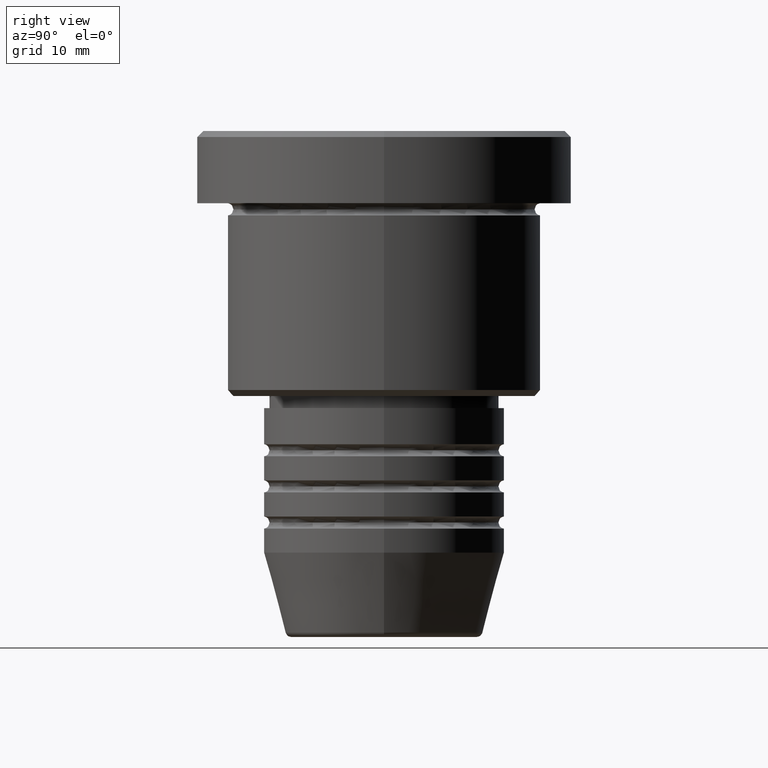
[diagram: clean part render]
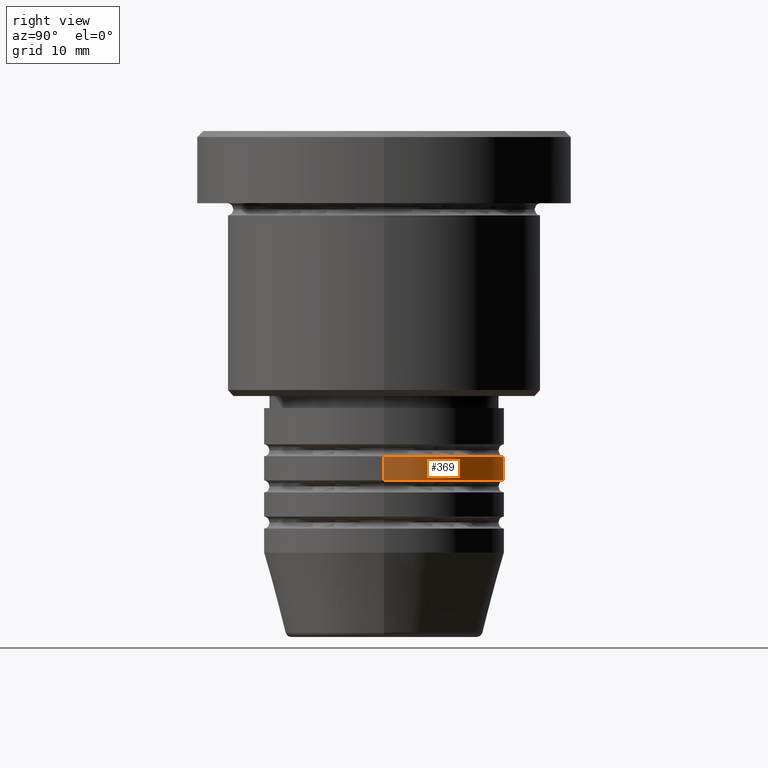
[diagram: same view with one face highlighted and labeled with its STEP entity id]
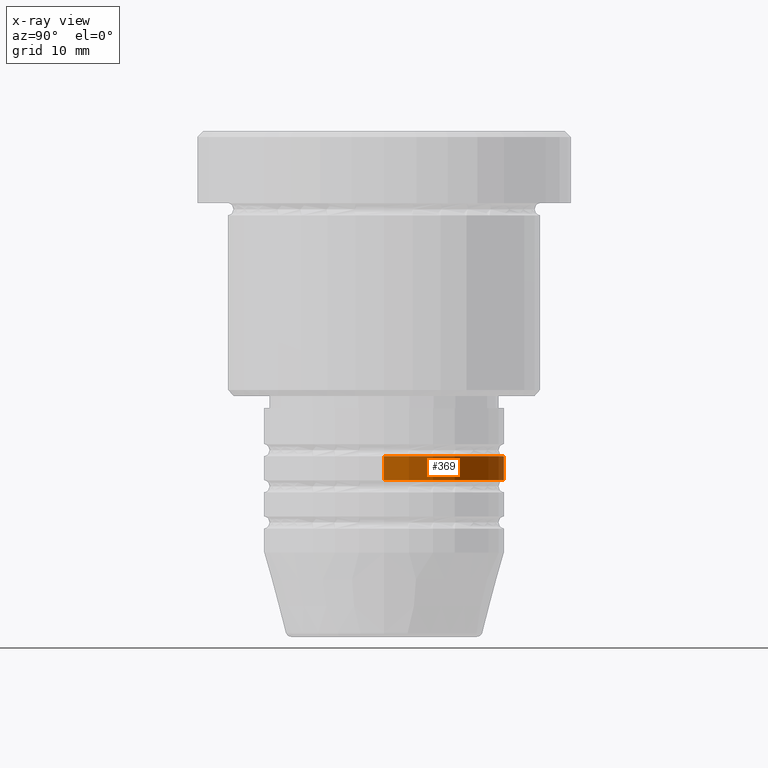
[diagram: x-ray of the same camera — body ghosted, the highlighted face saturated]
A machine part, right view. The second image highlights one B-rep face of the part: STEP entity #369.
The next image is the same camera in x-ray: the body ghosted, the highlighted face saturated — about 0% of this face is hidden behind the body in this view.
In plain terms, the highlighted cylindrical surface (partial cylindrical patch) has radius 10 mm, axis along (-0, -0, 1).
Its self-contained STEP definition (entity closure, byte-faithful):
#2 = DIRECTION ( 'NONE',  ( 1.000000000000000000, 0.000000000000000000, 0.000000000000000000 ) ) ;
#21 = ORIENTED_EDGE ( 'NONE', *, *, #91, .T. ) ;
#44 = CARTESIAN_POINT ( 'NONE',  ( -10.00000000000000000, 1.224646799147353256E-15, -28.99999999999997868 ) ) ;
#84 = VERTEX_POINT ( 'NONE', #93 ) ;
#85 = DIRECTION ( 'NONE',  ( -0.000000000000000000, -0.000000000000000000, 1.000000000000000000 ) ) ;
#91 = EDGE_CURVE ( 'NONE', #235, #708, #336, .T. ) ;
#92 = DIRECTION ( 'NONE',  ( 1.000000000000000000, 0.000000000000000000, 0.000000000000000000 ) ) ;
#93 = CARTESIAN_POINT ( 'NONE',  ( -10.00000000000000000, 1.224646799147353256E-15, -26.99999999999997868 ) ) ;
#100 = AXIS2_PLACEMENT_3D ( 'NONE', #348, #353, #974 ) ;
#185 = LINE ( 'NONE', #741, #683 ) ;
#230 = CARTESIAN_POINT ( 'NONE',  ( 10.00000000000000000, 0.000000000000000000, 0.000000000000000000 ) ) ;
#235 = VERTEX_POINT ( 'NONE', #1034 ) ;
#275 = FACE_OUTER_BOUND ( 'NONE', #731, .T. ) ;
#290 = CARTESIAN_POINT ( 'NONE',  ( 0.000000000000000000, 0.000000000000000000, 0.000000000000000000 ) ) ;
#336 = CIRCLE ( 'NONE', #772, 10.00000000000000000 ) ;
#348 = CARTESIAN_POINT ( 'NONE',  ( 0.000000000000000000, 0.000000000000000000, -26.99999999999997868 ) ) ;
#353 = DIRECTION ( 'NONE',  ( -0.000000000000000000, -0.000000000000000000, 1.000000000000000000 ) ) ;
#356 = EDGE_CURVE ( 'NONE', #708, #84, #185, .T. ) ;
#369 = ADVANCED_FACE ( 'NONE', ( #275 ), #915, .T. ) ;
#384 = EDGE_CURVE ( 'NONE', #235, #1018, #682, .T. ) ;
#450 = DIRECTION ( 'NONE',  ( -0.000000000000000000, -0.000000000000000000, 1.000000000000000000 ) ) ;
#463 = CARTESIAN_POINT ( 'NONE',  ( 0.000000000000000000, 0.000000000000000000, -28.99999999999997868 ) ) ;
#499 = EDGE_CURVE ( 'NONE', #1018, #84, #737, .T. ) ;
#508 = AXIS2_PLACEMENT_3D ( 'NONE', #290, #85, #92 ) ;
#587 = ORIENTED_EDGE ( 'NONE', *, *, #499, .F. ) ;
#619 = ORIENTED_EDGE ( 'NONE', *, *, #356, .T. ) ;
#682 = LINE ( 'NONE', #230, #1132 ) ;
#683 = VECTOR ( 'NONE', #450, 1000.000000000000000 ) ;
#708 = VERTEX_POINT ( 'NONE', #44 ) ;
#731 = EDGE_LOOP ( 'NONE', ( #21, #619, #587, #899 ) ) ;
#737 = CIRCLE ( 'NONE', #100, 10.00000000000000000 ) ;
#741 = CARTESIAN_POINT ( 'NONE',  ( -10.00000000000000000, 1.224646799147353256E-15, 0.000000000000000000 ) ) ;
#772 = AXIS2_PLACEMENT_3D ( 'NONE', #463, #822, #2 ) ;
#822 = DIRECTION ( 'NONE',  ( -0.000000000000000000, -0.000000000000000000, 1.000000000000000000 ) ) ;
#899 = ORIENTED_EDGE ( 'NONE', *, *, #384, .F. ) ;
#915 = CYLINDRICAL_SURFACE ( 'NONE', #508, 10.00000000000000000 ) ;
#943 = CARTESIAN_POINT ( 'NONE',  ( 10.00000000000000000, 0.000000000000000000, -26.99999999999997868 ) ) ;
#974 = DIRECTION ( 'NONE',  ( 1.000000000000000000, 0.000000000000000000, 0.000000000000000000 ) ) ;
#1018 = VERTEX_POINT ( 'NONE', #943 ) ;
#1034 = CARTESIAN_POINT ( 'NONE',  ( 10.00000000000000000, 0.000000000000000000, -28.99999999999997868 ) ) ;
#1132 = VECTOR ( 'NONE', #1136, 1000.000000000000000 ) ;
#1136 = DIRECTION ( 'NONE',  ( -0.000000000000000000, -0.000000000000000000, 1.000000000000000000 ) ) ;